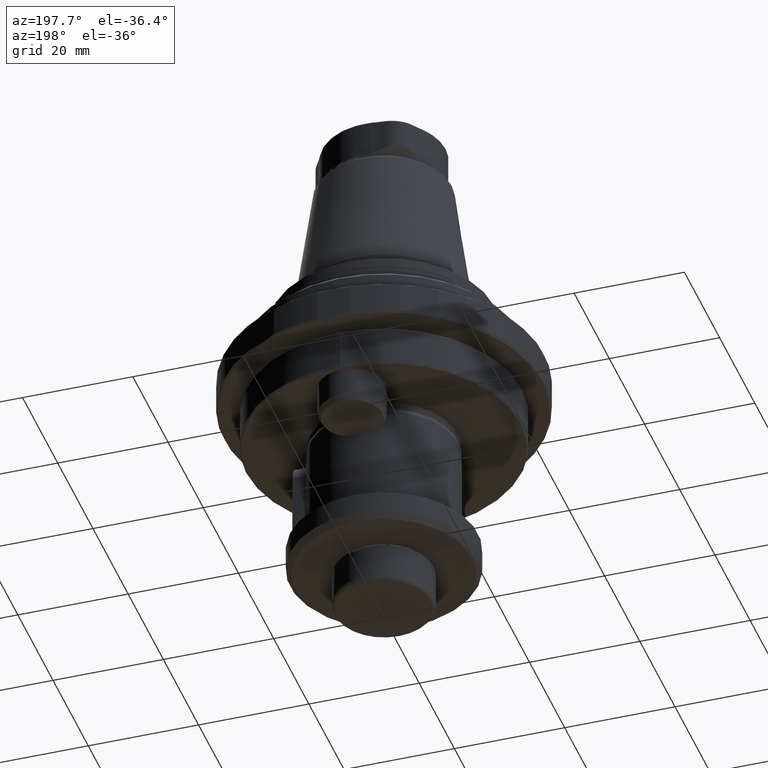
[diagram: clean part render]
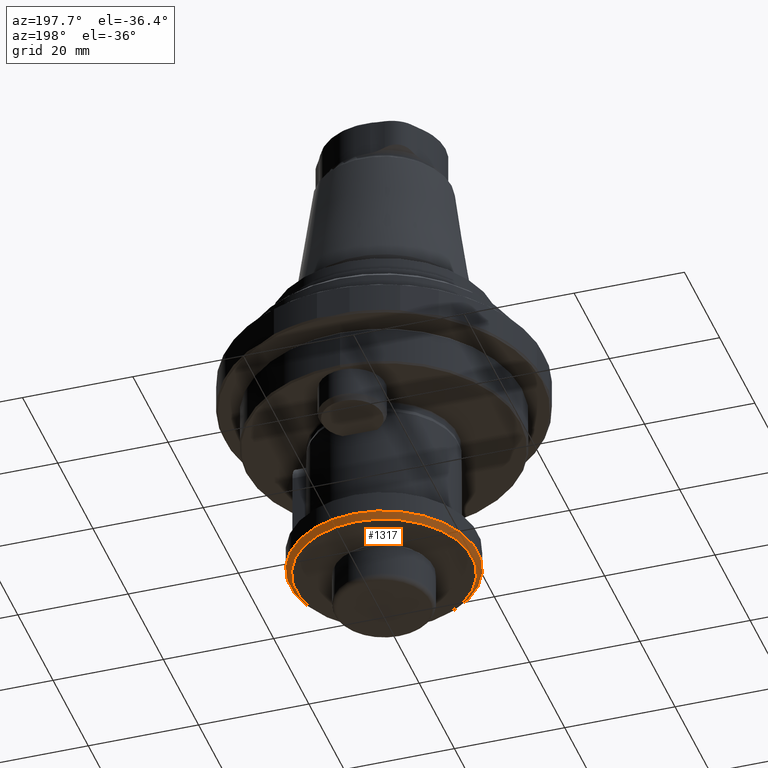
[diagram: same view with one face highlighted and labeled with its STEP entity id]
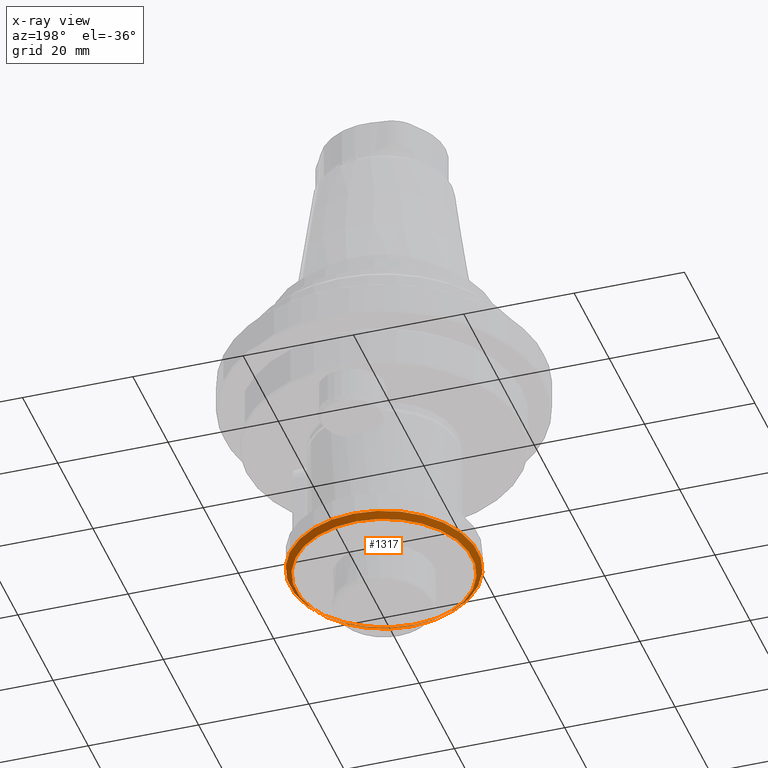
[diagram: x-ray of the same camera — body ghosted, the highlighted face saturated]
A machine part, auxiliary view. The second image highlights one B-rep face of the part: STEP entity #1317.
The next image is the same camera in x-ray: the body ghosted, the highlighted face saturated — about 1% of this face is hidden behind the body in this view.
In plain terms, the highlighted conical surface has half-angle 45 deg.
Its self-contained STEP definition (entity closure, byte-faithful):
#49=CONICAL_SURFACE('',#1495,17.,0.785398163397448);
#121=CIRCLE('',#1491,17.);
#124=CIRCLE('',#1496,16.);
#579=ORIENTED_EDGE('',*,*,#757,.F.);
#580=ORIENTED_EDGE('',*,*,#754,.T.);
#754=EDGE_CURVE('',#878,#878,#121,.T.);
#757=EDGE_CURVE('',#881,#881,#124,.T.);
#878=VERTEX_POINT('',#2411);
#881=VERTEX_POINT('',#2419);
#1057=EDGE_LOOP('',(#579));
#1058=EDGE_LOOP('',(#580));
#1193=FACE_BOUND('',#1057,.T.);
#1194=FACE_BOUND('',#1058,.T.);
#1317=ADVANCED_FACE('',(#1193,#1194),#49,.T.);
#1491=AXIS2_PLACEMENT_3D('',#2410,#1861,#1862);
#1495=AXIS2_PLACEMENT_3D('',#2417,#1869,#1870);
#1496=AXIS2_PLACEMENT_3D('',#2418,#1871,#1872);
#1861=DIRECTION('',(1.22464605849178E-16,2.73472351077882E-63,-1.));
#1862=DIRECTION('',(-7.58612361656627E-32,-1.,1.66533453693773E-16));
#1869=DIRECTION('',(-1.22464605849178E-16,-2.73472351077882E-63,1.));
#1870=DIRECTION('',(7.58612361656627E-32,1.,-1.66533453693773E-16));
#1871=DIRECTION('',(1.22464605849178E-16,2.73472351077882E-63,-1.));
#1872=DIRECTION('',(-7.58612361656627E-32,-1.,1.66533453693773E-16));
#2410=CARTESIAN_POINT('',(5.36890417005177E-15,7.82697929398972E-31,-41.));
#2411=CARTESIAN_POINT('',(5.36890417005177E-15,-17.,-41.));
#2417=CARTESIAN_POINT('',(5.36890417005177E-15,7.82697929398972E-31,-41.));
#2418=CARTESIAN_POINT('',(5.49136877590095E-15,7.82697929398972E-31,-42.));
#2419=CARTESIAN_POINT('',(5.49136877590095E-15,-16.,-42.));